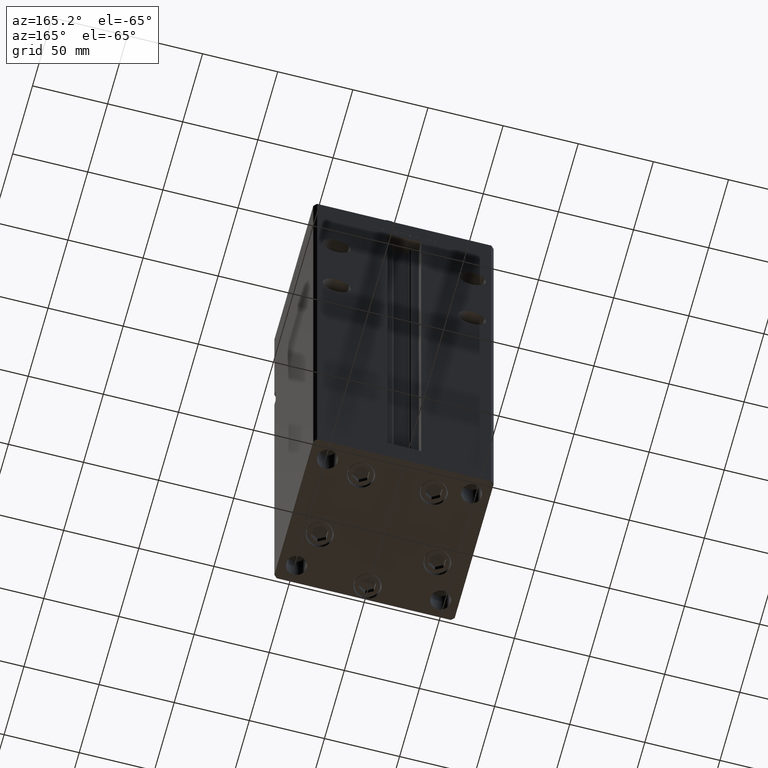
[diagram: clean part render]
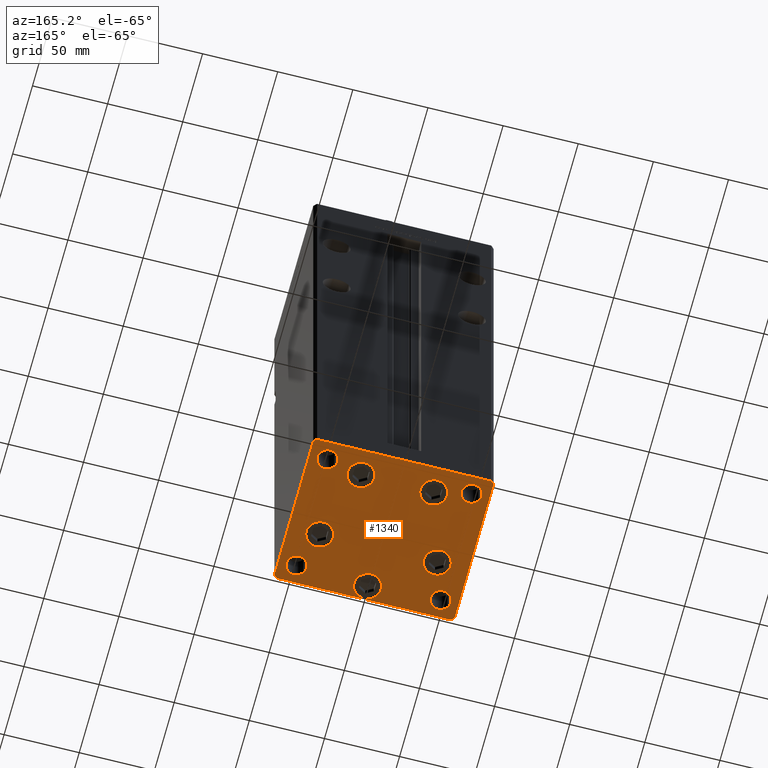
[diagram: same view with one face highlighted and labeled with its STEP entity id]
A machine part, auxiliary view. The second image highlights one B-rep face of the part: STEP entity #1340.
In plain terms, the highlighted planar face has unit normal (0, 0, -1).
Its self-contained STEP definition (entity closure, byte-faithful):
#45 = DIRECTION ( 'NONE',  ( 1.000000000000000000, 0.000000000000000000, 0.000000000000000000 ) ) ;
#675 = AXIS2_PLACEMENT_3D ( 'NONE', #39858, #31296, #19154 ) ;
#1236 = DIRECTION ( 'NONE',  ( 1.000000000000000000, 1.196361017915039486E-16, 0.000000000000000000 ) ) ;
#1283 = CARTESIAN_POINT ( 'NONE',  ( 58.00000000000000000, -51.00000000000000711, 0.000000000000000000 ) ) ;
#1340 = ADVANCED_FACE ( 'NONE', ( #17481, #21626, #34314, #8082, #29358, #46199, #42053, #50618, #51163, #29632 ), #13317, .T. ) ;
#1418 = AXIS2_PLACEMENT_3D ( 'NONE', #4755, #34855, #45 ) ;
#1469 = AXIS2_PLACEMENT_3D ( 'NONE', #2950, #15672, #20361 ) ;
#1514 = VERTEX_POINT ( 'NONE', #39807 ) ;
#1698 = CIRCLE ( 'NONE', #44062, 9.000000000000001776 ) ;
#2206 = ORIENTED_EDGE ( 'NONE', *, *, #36907, .T. ) ;
#2215 = CIRCLE ( 'NONE', #47232, 6.749999999999999112 ) ;
#2290 = CARTESIAN_POINT ( 'NONE',  ( -24.19288941894912170, 33.71875000000000000, 0.000000000000000000 ) ) ;
#2606 = EDGE_LOOP ( 'NONE', ( #2206, #25672 ) ) ;
#2950 = CARTESIAN_POINT ( 'NONE',  ( 48.00000000000000000, 38.99999999999999289, 0.000000000000000000 ) ) ;
#3013 = CARTESIAN_POINT ( 'NONE',  ( -60.00000000000000000, 48.99999999999995737, 0.000000000000000000 ) ) ;
#4015 = DIRECTION ( 'NONE',  ( -0.000000000000000000, 0.000000000000000000, 1.000000000000000000 ) ) ;
#4209 = DIRECTION ( 'NONE',  ( 0.000000000000000000, -0.000000000000000000, -1.000000000000000000 ) ) ;
#4480 = DIRECTION ( 'NONE',  ( -0.000000000000000000, 0.000000000000000000, 1.000000000000000000 ) ) ;
#4537 = DIRECTION ( 'NONE',  ( 0.000000000000000000, -0.000000000000000000, -1.000000000000000000 ) ) ;
#4647 = EDGE_CURVE ( 'NONE', #29278, #34686, #27830, .T. ) ;
#4667 = CARTESIAN_POINT ( 'NONE',  ( -54.75000000000000000, 39.00000000000000000, 0.000000000000000000 ) ) ;
#4681 = DIRECTION ( 'NONE',  ( 0.000000000000000000, -0.000000000000000000, -1.000000000000000000 ) ) ;
#4755 = CARTESIAN_POINT ( 'NONE',  ( -48.00000000000000000, 39.00000000000000000, 0.000000000000000000 ) ) ;
#4852 = CARTESIAN_POINT ( 'NONE',  ( -57.99999999999997868, -51.00000000000001421, 0.000000000000000000 ) ) ;
#5214 = ORIENTED_EDGE ( 'NONE', *, *, #41500, .T. ) ;
#5403 = EDGE_CURVE ( 'NONE', #41734, #40235, #26082, .T. ) ;
#5568 = CIRCLE ( 'NONE', #36451, 6.749999999999999112 ) ;
#5724 = VERTEX_POINT ( 'NONE', #46994 ) ;
#6561 = ORIENTED_EDGE ( 'NONE', *, *, #48821, .T. ) ;
#6966 = EDGE_CURVE ( 'NONE', #29053, #20910, #12525, .T. ) ;
#7111 = ORIENTED_EDGE ( 'NONE', *, *, #30555, .T. ) ;
#7440 = ORIENTED_EDGE ( 'NONE', *, *, #52158, .F. ) ;
#7648 = DIRECTION ( 'NONE',  ( 1.000000000000000000, 0.000000000000000000, 0.000000000000000000 ) ) ;
#8050 = DIRECTION ( 'NONE',  ( -0.000000000000000000, 0.000000000000000000, 1.000000000000000000 ) ) ;
#8082 = FACE_BOUND ( 'NONE', #34673, .T. ) ;
#8152 = ORIENTED_EDGE ( 'NONE', *, *, #24183, .F. ) ;
#8526 = EDGE_CURVE ( 'NONE', #34686, #41734, #23353, .T. ) ;
#8724 = CARTESIAN_POINT ( 'NONE',  ( -15.19288941894912170, 33.71875000000000000, 0.000000000000000000 ) ) ;
#8978 = VECTOR ( 'NONE', #21942, 1000.000000000000000 ) ;
#9241 = DIRECTION ( 'NONE',  ( 1.000000000000000000, 0.000000000000000000, 0.000000000000000000 ) ) ;
#9872 = AXIS2_PLACEMENT_3D ( 'NONE', #28185, #51082, #12405 ) ;
#9926 = VECTOR ( 'NONE', #41345, 1000.000000000000000 ) ;
#10202 = DIRECTION ( 'NONE',  ( -0.7071067811865451302, -0.7071067811865500152, 0.000000000000000000 ) ) ;
#10779 = ORIENTED_EDGE ( 'NONE', *, *, #4647, .T. ) ;
#11297 = CARTESIAN_POINT ( 'NONE',  ( -60.00000000000000000, 48.99999999999995737, 0.000000000000000000 ) ) ;
#11433 = DIRECTION ( 'NONE',  ( -0.7071067811865487940, 0.7071067811865463515, 0.000000000000000000 ) ) ;
#11712 = ORIENTED_EDGE ( 'NONE', *, *, #51818, .T. ) ;
#11734 = VECTOR ( 'NONE', #11433, 1000.000000000000000 ) ;
#11786 = CARTESIAN_POINT ( 'NONE',  ( 48.00000000000000000, -38.99999999999999289, 0.000000000000000000 ) ) ;
#11871 = DIRECTION ( 'NONE',  ( 0.000000000000000000, -0.000000000000000000, -1.000000000000000000 ) ) ;
#12387 = EDGE_CURVE ( 'NONE', #12875, #35317, #45363, .T. ) ;
#12405 = DIRECTION ( 'NONE',  ( 1.000000000000000000, 0.000000000000000000, 0.000000000000000000 ) ) ;
#12525 = CIRCLE ( 'NONE', #52231, 9.000000000000001776 ) ;
#12875 = VERTEX_POINT ( 'NONE', #15906 ) ;
#12929 = DIRECTION ( 'NONE',  ( 0.000000000000000000, -0.000000000000000000, -1.000000000000000000 ) ) ;
#13317 = PLANE ( 'NONE',  #43372 ) ;
#13394 = DIRECTION ( 'NONE',  ( 0.000000000000000000, -0.000000000000000000, -1.000000000000000000 ) ) ;
#14269 = LINE ( 'NONE', #1283, #15436 ) ;
#14928 = AXIS2_PLACEMENT_3D ( 'NONE', #38106, #4681, #38379 ) ;
#15013 = CARTESIAN_POINT ( 'NONE',  ( -60.00000000000000000, -49.00000000000000000, 0.000000000000000000 ) ) ;
#15237 = VERTEX_POINT ( 'NONE', #44842 ) ;
#15258 = EDGE_CURVE ( 'NONE', #52293, #44580, #53123, .T. ) ;
#15436 = VECTOR ( 'NONE', #17616, 1000.000000000000114 ) ;
#15490 = CARTESIAN_POINT ( 'NONE',  ( -60.00000000000000000, -49.00000000000000000, 0.000000000000000000 ) ) ;
#15672 = DIRECTION ( 'NONE',  ( -0.000000000000000000, 0.000000000000000000, 1.000000000000000000 ) ) ;
#15698 = DIRECTION ( 'NONE',  ( 1.000000000000000000, 0.000000000000000000, 0.000000000000000000 ) ) ;
#15710 = EDGE_CURVE ( 'NONE', #51215, #53968, #2215, .T. ) ;
#15906 = CARTESIAN_POINT ( 'NONE',  ( 9.000000000000005329, -41.50000000000000000, 0.000000000000000000 ) ) ;
#16000 = LINE ( 'NONE', #3013, #30588 ) ;
#16072 = CIRCLE ( 'NONE', #9872, 6.749999999999999112 ) ;
#16753 = CIRCLE ( 'NONE', #22946, 9.000000000000000000 ) ;
#16988 = DIRECTION ( 'NONE',  ( 1.000000000000000000, 0.000000000000000000, 0.000000000000000000 ) ) ;
#17205 = CARTESIAN_POINT ( 'NONE',  ( 5.082284216461515748E-15, -41.50000000000000000, 0.000000000000000000 ) ) ;
#17388 = CIRCLE ( 'NONE', #26226, 6.749999999999999112 ) ;
#17391 = AXIS2_PLACEMENT_3D ( 'NONE', #53915, #8050, #37607 ) ;
#17481 = FACE_BOUND ( 'NONE', #49314, .T. ) ;
#17616 = DIRECTION ( 'NONE',  ( 0.7071067811865474617, 0.7071067811865474617, 0.000000000000000000 ) ) ;
#18187 = VERTEX_POINT ( 'NONE', #11297 ) ;
#18297 = CARTESIAN_POINT ( 'NONE',  ( -39.12657522565562829, -13.83333333333333925, 0.000000000000000000 ) ) ;
#19154 = DIRECTION ( 'NONE',  ( 1.000000000000000000, 0.000000000000000000, 0.000000000000000000 ) ) ;
#19260 = VERTEX_POINT ( 'NONE', #8724 ) ;
#19634 = EDGE_CURVE ( 'NONE', #18187, #52293, #16000, .T. ) ;
#19827 = CARTESIAN_POINT ( 'NONE',  ( -48.12657522565562829, -13.83333333333333925, 0.000000000000000000 ) ) ;
#19887 = DIRECTION ( 'NONE',  ( 0.000000000000000000, -1.000000000000000000, 0.000000000000000000 ) ) ;
#20337 = CARTESIAN_POINT ( 'NONE',  ( 48.00000000000000000, 38.99999999999999289, 0.000000000000000000 ) ) ;
#20361 = DIRECTION ( 'NONE',  ( 1.000000000000000000, 0.000000000000000000, 0.000000000000000000 ) ) ;
#20556 = CARTESIAN_POINT ( 'NONE',  ( 59.99999999999994316, 49.00000000000000000, 0.000000000000000000 ) ) ;
#20701 = EDGE_CURVE ( 'NONE', #29072, #38624, #42980, .T. ) ;
#20910 = VERTEX_POINT ( 'NONE', #19827 ) ;
#20939 = CARTESIAN_POINT ( 'NONE',  ( -33.19288941894912170, 33.71875000000000000, 0.000000000000000000 ) ) ;
#21153 = DIRECTION ( 'NONE',  ( 1.000000000000000000, 0.000000000000000000, 0.000000000000000000 ) ) ;
#21342 = DIRECTION ( 'NONE',  ( 1.000000000000000000, 0.000000000000000000, 0.000000000000000000 ) ) ;
#21359 = CARTESIAN_POINT ( 'NONE',  ( 54.75000000000000000, -38.99999999999999289, 0.000000000000000000 ) ) ;
#21626 = FACE_BOUND ( 'NONE', #30525, .T. ) ;
#21687 = CARTESIAN_POINT ( 'NONE',  ( -41.25000000000000000, -39.00000000000000000, 0.000000000000000000 ) ) ;
#21837 = EDGE_CURVE ( 'NONE', #20910, #29053, #49955, .T. ) ;
#21942 = DIRECTION ( 'NONE',  ( -1.000000000000000000, -2.392722035830079958E-16, 0.000000000000000000 ) ) ;
#22046 = CARTESIAN_POINT ( 'NONE',  ( 39.12657522565562829, -13.83333333333332860, 0.000000000000000000 ) ) ;
#22544 = CARTESIAN_POINT ( 'NONE',  ( -8.999999999999994671, -41.50000000000000000, 0.000000000000000000 ) ) ;
#22723 = DIRECTION ( 'NONE',  ( 0.000000000000000000, -0.000000000000000000, -1.000000000000000000 ) ) ;
#22946 = AXIS2_PLACEMENT_3D ( 'NONE', #28357, #45192, #23685 ) ;
#23133 = CIRCLE ( 'NONE', #27545, 9.000000000000001776 ) ;
#23157 = ORIENTED_EDGE ( 'NONE', *, *, #8526, .T. ) ;
#23190 = CARTESIAN_POINT ( 'NONE',  ( -30.12657522565562829, -13.83333333333333748, 0.000000000000000000 ) ) ;
#23328 = DIRECTION ( 'NONE',  ( 0.7071067811865474617, -0.7071067811865474617, 0.000000000000000000 ) ) ;
#23353 = LINE ( 'NONE', #53148, #11734 ) ;
#23451 = EDGE_CURVE ( 'NONE', #1514, #15237, #31494, .T. ) ;
#23685 = DIRECTION ( 'NONE',  ( 1.000000000000000000, 0.000000000000000000, 0.000000000000000000 ) ) ;
#24183 = EDGE_CURVE ( 'NONE', #15237, #1514, #17388, .T. ) ;
#24238 = ORIENTED_EDGE ( 'NONE', *, *, #6966, .T. ) ;
#24778 = CARTESIAN_POINT ( 'NONE',  ( 60.00000000000001421, -48.99999999999999289, 0.000000000000000000 ) ) ;
#25089 = AXIS2_PLACEMENT_3D ( 'NONE', #17205, #4209, #38181 ) ;
#25593 = ORIENTED_EDGE ( 'NONE', *, *, #12387, .T. ) ;
#25672 = ORIENTED_EDGE ( 'NONE', *, *, #44377, .T. ) ;
#25940 = ORIENTED_EDGE ( 'NONE', *, *, #26556, .T. ) ;
#25985 = CARTESIAN_POINT ( 'NONE',  ( -57.99999999999999289, 50.99999999999997868, 0.000000000000000000 ) ) ;
#26082 = LINE ( 'NONE', #37947, #8978 ) ;
#26149 = AXIS2_PLACEMENT_3D ( 'NONE', #18297, #22723, #39555 ) ;
#26226 = AXIS2_PLACEMENT_3D ( 'NONE', #20337, #4015, #50157 ) ;
#26556 = EDGE_CURVE ( 'NONE', #19260, #39794, #50973, .T. ) ;
#26722 = DIRECTION ( 'NONE',  ( 1.000000000000000000, 0.000000000000000000, 0.000000000000000000 ) ) ;
#26740 = EDGE_CURVE ( 'NONE', #30802, #44875, #43052, .T. ) ;
#27545 = AXIS2_PLACEMENT_3D ( 'NONE', #29709, #47367, #21153 ) ;
#27646 = ORIENTED_EDGE ( 'NONE', *, *, #26740, .T. ) ;
#27823 = ORIENTED_EDGE ( 'NONE', *, *, #19634, .T. ) ;
#27830 = LINE ( 'NONE', #24778, #9926 ) ;
#28175 = EDGE_CURVE ( 'NONE', #35317, #12875, #45767, .T. ) ;
#28185 = CARTESIAN_POINT ( 'NONE',  ( -48.00000000000000000, -39.00000000000000000, 0.000000000000000000 ) ) ;
#28357 = CARTESIAN_POINT ( 'NONE',  ( -24.19288941894912170, 33.71875000000000000, 0.000000000000000000 ) ) ;
#28645 = DIRECTION ( 'NONE',  ( 0.000000000000000000, -0.000000000000000000, -1.000000000000000000 ) ) ;
#29053 = VERTEX_POINT ( 'NONE', #23190 ) ;
#29072 = VERTEX_POINT ( 'NONE', #44433 ) ;
#29223 = CARTESIAN_POINT ( 'NONE',  ( 60.00000000000001421, -48.99999999999999289, 0.000000000000000000 ) ) ;
#29278 = VERTEX_POINT ( 'NONE', #29223 ) ;
#29279 = AXIS2_PLACEMENT_3D ( 'NONE', #11786, #28645, #7648 ) ;
#29327 = VERTEX_POINT ( 'NONE', #43025 ) ;
#29358 = FACE_BOUND ( 'NONE', #31764, .T. ) ;
#29622 = EDGE_CURVE ( 'NONE', #5724, #44517, #1698, .T. ) ;
#29632 = FACE_BOUND ( 'NONE', #2606, .T. ) ;
#29676 = AXIS2_PLACEMENT_3D ( 'NONE', #38789, #4537, #16988 ) ;
#29709 = CARTESIAN_POINT ( 'NONE',  ( 39.12657522565562829, -13.83333333333332860, 0.000000000000000000 ) ) ;
#29749 = ORIENTED_EDGE ( 'NONE', *, *, #28175, .T. ) ;
#29779 = DIRECTION ( 'NONE',  ( 1.000000000000000000, 0.000000000000000000, 0.000000000000000000 ) ) ;
#30223 = VECTOR ( 'NONE', #10202, 1000.000000000000114 ) ;
#30525 = EDGE_LOOP ( 'NONE', ( #11712, #27646 ) ) ;
#30529 = CARTESIAN_POINT ( 'NONE',  ( 33.19288941894911460, 33.71875000000000711, 0.000000000000000000 ) ) ;
#30555 = EDGE_CURVE ( 'NONE', #39794, #19260, #16753, .T. ) ;
#30588 = VECTOR ( 'NONE', #19887, 1000.000000000000000 ) ;
#30802 = VERTEX_POINT ( 'NONE', #30529 ) ;
#31296 = DIRECTION ( 'NONE',  ( 0.000000000000000000, -0.000000000000000000, -1.000000000000000000 ) ) ;
#31309 = CARTESIAN_POINT ( 'NONE',  ( -57.99999999999999289, 50.99999999999997868, 0.000000000000000000 ) ) ;
#31494 = CIRCLE ( 'NONE', #1469, 6.749999999999999112 ) ;
#31764 = EDGE_LOOP ( 'NONE', ( #33889, #24238 ) ) ;
#32542 = CARTESIAN_POINT ( 'NONE',  ( -39.12657522565562829, -13.83333333333333925, 0.000000000000000000 ) ) ;
#32794 = CIRCLE ( 'NONE', #29279, 6.749999999999999112 ) ;
#33238 = CARTESIAN_POINT ( 'NONE',  ( -57.99999999999997868, -51.00000000000001421, 0.000000000000000000 ) ) ;
#33513 = EDGE_LOOP ( 'NONE', ( #53528, #40735, #6561, #10779, #23157, #49586, #5214, #27823 ) ) ;
#33889 = ORIENTED_EDGE ( 'NONE', *, *, #21837, .T. ) ;
#34314 = FACE_BOUND ( 'NONE', #41618, .T. ) ;
#34673 = EDGE_LOOP ( 'NONE', ( #29749, #25593 ) ) ;
#34686 = VERTEX_POINT ( 'NONE', #20556 ) ;
#34855 = DIRECTION ( 'NONE',  ( -0.000000000000000000, 0.000000000000000000, 1.000000000000000000 ) ) ;
#35009 = DIRECTION ( 'NONE',  ( 0.000000000000000000, -0.000000000000000000, -1.000000000000000000 ) ) ;
#35152 = EDGE_CURVE ( 'NONE', #53968, #51215, #32794, .T. ) ;
#35158 = CARTESIAN_POINT ( 'NONE',  ( 41.25000000000000000, -38.99999999999999289, 0.000000000000000000 ) ) ;
#35228 = ORIENTED_EDGE ( 'NONE', *, *, #23451, .F. ) ;
#35317 = VERTEX_POINT ( 'NONE', #22544 ) ;
#36451 = AXIS2_PLACEMENT_3D ( 'NONE', #47364, #13394, #9241 ) ;
#36907 = EDGE_CURVE ( 'NONE', #40168, #49433, #16072, .T. ) ;
#37607 = DIRECTION ( 'NONE',  ( 1.000000000000000000, 0.000000000000000000, 0.000000000000000000 ) ) ;
#37947 = CARTESIAN_POINT ( 'NONE',  ( 57.99999999999993605, 51.00000000000000711, 0.000000000000000000 ) ) ;
#38106 = CARTESIAN_POINT ( 'NONE',  ( 5.082284216461515748E-15, -41.50000000000000000, 0.000000000000000000 ) ) ;
#38181 = DIRECTION ( 'NONE',  ( 1.000000000000000000, 0.000000000000000000, 0.000000000000000000 ) ) ;
#38379 = DIRECTION ( 'NONE',  ( 1.000000000000000000, 0.000000000000000000, 0.000000000000000000 ) ) ;
#38624 = VERTEX_POINT ( 'NONE', #4667 ) ;
#38789 = CARTESIAN_POINT ( 'NONE',  ( 24.19288941894911460, 33.71875000000000711, 0.000000000000000000 ) ) ;
#39555 = DIRECTION ( 'NONE',  ( 1.000000000000000000, 0.000000000000000000, 0.000000000000000000 ) ) ;
#39568 = EDGE_LOOP ( 'NONE', ( #52963, #7440 ) ) ;
#39794 = VERTEX_POINT ( 'NONE', #20939 ) ;
#39807 = CARTESIAN_POINT ( 'NONE',  ( 41.25000000000000000, 38.99999999999999289, 0.000000000000000000 ) ) ;
#39858 = CARTESIAN_POINT ( 'NONE',  ( 24.19288941894911460, 33.71875000000000711, 0.000000000000000000 ) ) ;
#39891 = CARTESIAN_POINT ( 'NONE',  ( 48.12657522565562829, -13.83333333333332682, 0.000000000000000000 ) ) ;
#40168 = VERTEX_POINT ( 'NONE', #21687 ) ;
#40235 = VERTEX_POINT ( 'NONE', #31309 ) ;
#40366 = CARTESIAN_POINT ( 'NONE',  ( 15.19288941894911105, 33.71875000000000711, 0.000000000000000000 ) ) ;
#40735 = ORIENTED_EDGE ( 'NONE', *, *, #50684, .T. ) ;
#41195 = EDGE_CURVE ( 'NONE', #44517, #5724, #23133, .T. ) ;
#41345 = DIRECTION ( 'NONE',  ( -7.080503983578803823E-16, 1.000000000000000000, 0.000000000000000000 ) ) ;
#41369 = DIRECTION ( 'NONE',  ( 0.000000000000000000, -0.000000000000000000, -1.000000000000000000 ) ) ;
#41412 = ORIENTED_EDGE ( 'NONE', *, *, #35152, .T. ) ;
#41430 = DIRECTION ( 'NONE',  ( 1.000000000000000000, 0.000000000000000000, 0.000000000000000000 ) ) ;
#41500 = EDGE_CURVE ( 'NONE', #40235, #18187, #51927, .T. ) ;
#41618 = EDGE_LOOP ( 'NONE', ( #51405, #51286 ) ) ;
#41660 = CARTESIAN_POINT ( 'NONE',  ( 57.99999999999993605, 51.00000000000000711, 0.000000000000000000 ) ) ;
#41734 = VERTEX_POINT ( 'NONE', #41660 ) ;
#42053 = FACE_BOUND ( 'NONE', #51683, .T. ) ;
#42328 = CARTESIAN_POINT ( 'NONE',  ( 0.000000000000000000, 0.000000000000000000, 0.000000000000000000 ) ) ;
#42980 = CIRCLE ( 'NONE', #17391, 6.749999999999999112 ) ;
#43025 = CARTESIAN_POINT ( 'NONE',  ( 58.00000000000000000, -51.00000000000000711, 0.000000000000000000 ) ) ;
#43052 = CIRCLE ( 'NONE', #675, 9.000000000000001776 ) ;
#43372 = AXIS2_PLACEMENT_3D ( 'NONE', #42328, #4480, #21342 ) ;
#44062 = AXIS2_PLACEMENT_3D ( 'NONE', #22046, #35009, #26722 ) ;
#44377 = EDGE_CURVE ( 'NONE', #49433, #40168, #5568, .T. ) ;
#44433 = CARTESIAN_POINT ( 'NONE',  ( -41.25000000000000000, 39.00000000000000000, 0.000000000000000000 ) ) ;
#44517 = VERTEX_POINT ( 'NONE', #39891 ) ;
#44580 = VERTEX_POINT ( 'NONE', #33238 ) ;
#44842 = CARTESIAN_POINT ( 'NONE',  ( 54.75000000000000000, 38.99999999999999289, 0.000000000000000000 ) ) ;
#44875 = VERTEX_POINT ( 'NONE', #40366 ) ;
#45192 = DIRECTION ( 'NONE',  ( 0.000000000000000000, -0.000000000000000000, -1.000000000000000000 ) ) ;
#45363 = CIRCLE ( 'NONE', #25089, 9.000000000000000000 ) ;
#45472 = VECTOR ( 'NONE', #1236, 1000.000000000000000 ) ;
#45767 = CIRCLE ( 'NONE', #14928, 9.000000000000000000 ) ;
#46199 = FACE_BOUND ( 'NONE', #47012, .T. ) ;
#46574 = LINE ( 'NONE', #4852, #45472 ) ;
#46994 = CARTESIAN_POINT ( 'NONE',  ( 30.12657522565562829, -13.83333333333332860, 0.000000000000000000 ) ) ;
#47012 = EDGE_LOOP ( 'NONE', ( #8152, #35228 ) ) ;
#47232 = AXIS2_PLACEMENT_3D ( 'NONE', #50765, #12929, #29779 ) ;
#47364 = CARTESIAN_POINT ( 'NONE',  ( -48.00000000000000000, -39.00000000000000000, 0.000000000000000000 ) ) ;
#47367 = DIRECTION ( 'NONE',  ( 0.000000000000000000, -0.000000000000000000, -1.000000000000000000 ) ) ;
#48821 = EDGE_CURVE ( 'NONE', #29327, #29278, #14269, .T. ) ;
#49073 = CIRCLE ( 'NONE', #1418, 6.749999999999999112 ) ;
#49314 = EDGE_LOOP ( 'NONE', ( #7111, #25940 ) ) ;
#49433 = VERTEX_POINT ( 'NONE', #51853 ) ;
#49586 = ORIENTED_EDGE ( 'NONE', *, *, #5403, .T. ) ;
#49955 = CIRCLE ( 'NONE', #26149, 9.000000000000001776 ) ;
#50157 = DIRECTION ( 'NONE',  ( 1.000000000000000000, 0.000000000000000000, 0.000000000000000000 ) ) ;
#50618 = FACE_BOUND ( 'NONE', #39568, .T. ) ;
#50684 = EDGE_CURVE ( 'NONE', #44580, #29327, #46574, .T. ) ;
#50765 = CARTESIAN_POINT ( 'NONE',  ( 48.00000000000000000, -38.99999999999999289, 0.000000000000000000 ) ) ;
#50973 = CIRCLE ( 'NONE', #53613, 9.000000000000000000 ) ;
#51082 = DIRECTION ( 'NONE',  ( 0.000000000000000000, -0.000000000000000000, -1.000000000000000000 ) ) ;
#51163 = FACE_OUTER_BOUND ( 'NONE', #33513, .T. ) ;
#51215 = VERTEX_POINT ( 'NONE', #35158 ) ;
#51286 = ORIENTED_EDGE ( 'NONE', *, *, #41195, .T. ) ;
#51405 = ORIENTED_EDGE ( 'NONE', *, *, #29622, .T. ) ;
#51683 = EDGE_LOOP ( 'NONE', ( #41412, #54060 ) ) ;
#51818 = EDGE_CURVE ( 'NONE', #44875, #30802, #53473, .T. ) ;
#51853 = CARTESIAN_POINT ( 'NONE',  ( -54.75000000000000000, -39.00000000000000000, 0.000000000000000000 ) ) ;
#51927 = LINE ( 'NONE', #25985, #30223 ) ;
#52158 = EDGE_CURVE ( 'NONE', #38624, #29072, #49073, .T. ) ;
#52231 = AXIS2_PLACEMENT_3D ( 'NONE', #32542, #41369, #15698 ) ;
#52293 = VERTEX_POINT ( 'NONE', #15490 ) ;
#52963 = ORIENTED_EDGE ( 'NONE', *, *, #20701, .F. ) ;
#53123 = LINE ( 'NONE', #15013, #53370 ) ;
#53148 = CARTESIAN_POINT ( 'NONE',  ( 59.99999999999994316, 49.00000000000000000, 0.000000000000000000 ) ) ;
#53370 = VECTOR ( 'NONE', #23328, 1000.000000000000114 ) ;
#53473 = CIRCLE ( 'NONE', #29676, 9.000000000000001776 ) ;
#53528 = ORIENTED_EDGE ( 'NONE', *, *, #15258, .T. ) ;
#53613 = AXIS2_PLACEMENT_3D ( 'NONE', #2290, #11871, #41430 ) ;
#53915 = CARTESIAN_POINT ( 'NONE',  ( -48.00000000000000000, 39.00000000000000000, 0.000000000000000000 ) ) ;
#53968 = VERTEX_POINT ( 'NONE', #21359 ) ;
#54060 = ORIENTED_EDGE ( 'NONE', *, *, #15710, .T. ) ;